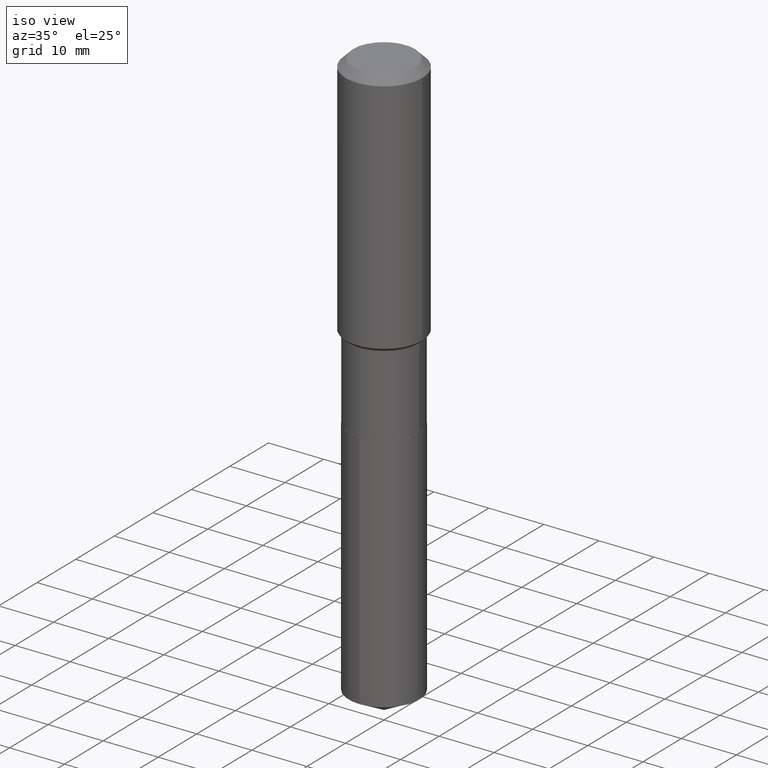
[diagram: clean part render]
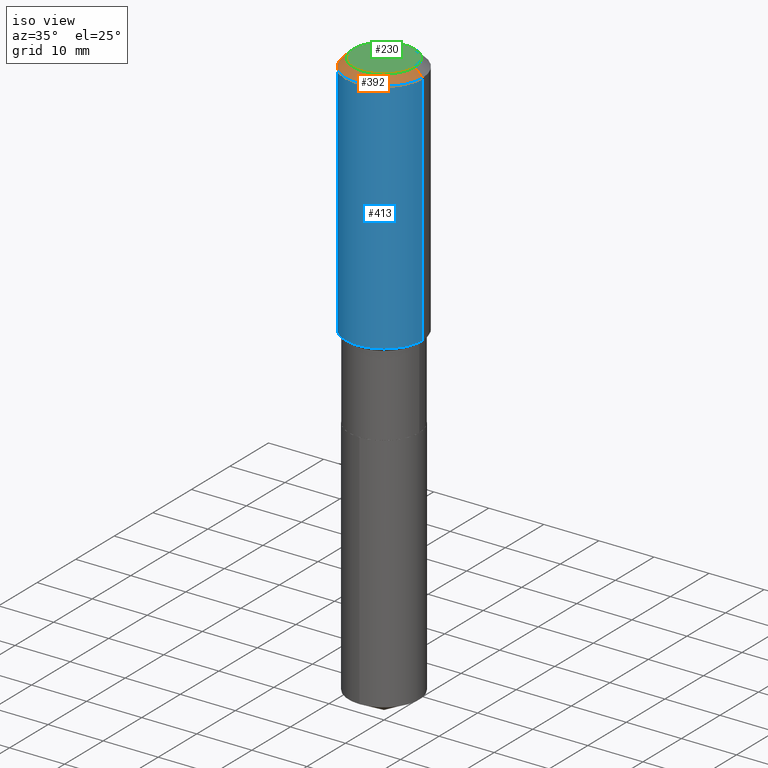
[diagram: same view with three faces highlighted in distinct colors, each labeled with its STEP entity id]
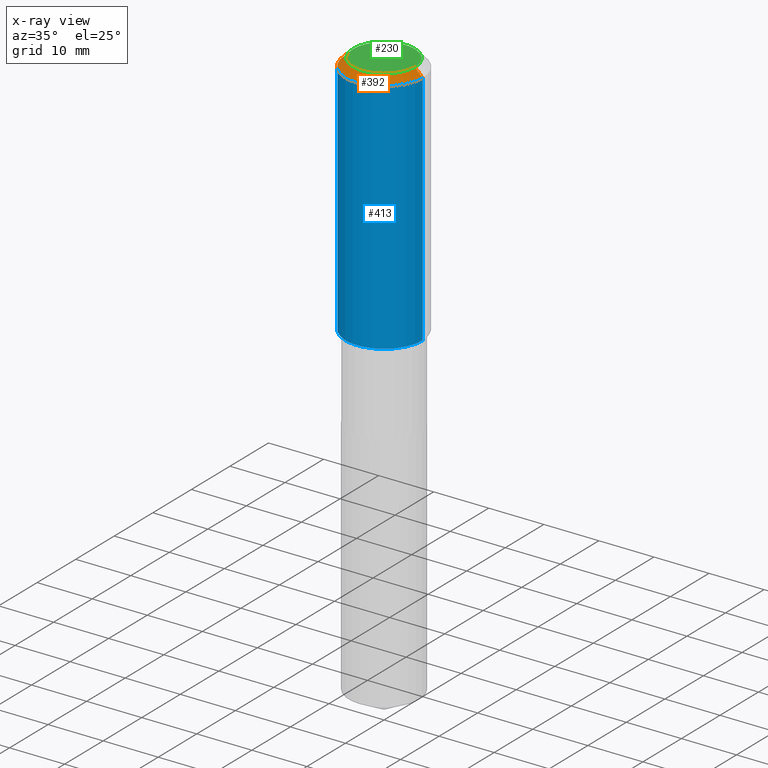
[diagram: x-ray of the same camera — body ghosted, the three highlighted faces saturated]
A machine part, iso view with three faces highlighted in distinct colors.
The next image is the same camera in x-ray (body ghosted, the three faces saturated) — at least one of them is partly hidden behind the body in this view.
Their STEP definitions:

[orange] entity #392 — the highlighted conical surface has half-angle 45 deg.
#8 = DIRECTION ( 'NONE',  ( -2.445468806185136597E-29, 3.491481338843145583E-15, 1.000000000000000000 ) ) ;
#15 = ORIENTED_EDGE ( 'NONE', *, *, #252, .T. ) ;
#32 = AXIS2_PLACEMENT_3D ( 'NONE', #99, #244, #393 ) ;
#42 = DIRECTION ( 'NONE',  ( 1.000000000000000000, -6.982962677686265922E-15, 0.000000000000000000 ) ) ;
#82 = CARTESIAN_POINT ( 'NONE',  ( -0.2204800000000000093, 1.635828836874783961E-15, 3.860086710901350968E-18 ) ) ;
#87 = DIRECTION ( 'NONE',  ( -0.7071067811865453523, 2.468850131082234184E-15, -0.7071067811865496822 ) ) ;
#92 = EDGE_CURVE ( 'NONE', #299, #141, #157, .T. ) ;
#99 = CARTESIAN_POINT ( 'NONE',  ( 1.347942405969256063E-30, -1.924504513970354330E-16, -0.05512000000000035621 ) ) ;
#115 = EDGE_CURVE ( 'NONE', #446, #303, #340, .T. ) ;
#124 = CARTESIAN_POINT ( 'NONE',  ( -9.439721640706190018E-47, 1.347742071746724849E-32, 3.860086710912454339E-18 ) ) ;
#135 = VECTOR ( 'NONE', #333, 39.37007874015748143 ) ;
#137 = ORIENTED_EDGE ( 'NONE', *, *, #115, .F. ) ;
#141 = VERTEX_POINT ( 'NONE', #169 ) ;
#145 = CONICAL_SURFACE ( 'NONE', #32, 0.2756000000000000116, 0.7853981633974452814 ) ;
#149 = AXIS2_PLACEMENT_3D ( 'NONE', #200, #160, #42 ) ;
#157 = LINE ( 'NONE', #487, #247 ) ;
#160 = DIRECTION ( 'NONE',  ( -2.445468806185136597E-29, 3.491481338843145583E-15, 1.000000000000000000 ) ) ;
#161 = EDGE_CURVE ( 'NONE', #299, #446, #292, .T. ) ;
#169 = CARTESIAN_POINT ( 'NONE',  ( -0.2756000000000000116, -1.195023219201267736E-15, -0.05512000000000035621 ) ) ;
#200 = CARTESIAN_POINT ( 'NONE',  ( 1.347942405969256063E-30, -1.924504513970354330E-16, -0.05512000000000035621 ) ) ;
#244 = DIRECTION ( 'NONE',  ( 2.445468806185136597E-29, -3.491481338843145583E-15, -1.000000000000000000 ) ) ;
#246 = ORIENTED_EDGE ( 'NONE', *, *, #92, .T. ) ;
#247 = VECTOR ( 'NONE', #87, 39.37007874015748143 ) ;
#252 = EDGE_CURVE ( 'NONE', #141, #303, #358, .T. ) ;
#264 = CARTESIAN_POINT ( 'NONE',  ( 0.2756000000000000116, -2.083203699582869812E-15, -0.05512000000000035621 ) ) ;
#292 = CIRCLE ( 'NONE', #466, 0.2204800000000000093 ) ;
#299 = VERTEX_POINT ( 'NONE', #82 ) ;
#303 = VERTEX_POINT ( 'NONE', #386 ) ;
#316 = FACE_OUTER_BOUND ( 'NONE', #483, .T. ) ;
#332 = CARTESIAN_POINT ( 'NONE',  ( 0.2204800000000000093, -1.797903149065768707E-15, 3.860086710924123164E-18 ) ) ;
#333 = DIRECTION ( 'NONE',  ( 0.7071067811865453523, -7.319954787623248157E-15, -0.7071067811865496822 ) ) ;
#340 = LINE ( 'NONE', #264, #135 ) ;
#358 = CIRCLE ( 'NONE', #149, 0.2756000000000000116 ) ;
#386 = CARTESIAN_POINT ( 'NONE',  ( 0.2756000000000000116, -2.116954965367370658E-15, -0.05512000000000035621 ) ) ;
#392 = ADVANCED_FACE ( 'NONE', ( #316 ), #145, .T. ) ;
#393 = DIRECTION ( 'NONE',  ( -1.000000000000000000, 6.982962677686269077E-15, 0.000000000000000000 ) ) ;
#422 = DIRECTION ( 'NONE',  ( 1.000000000000000000, -6.982962677686266711E-15, 4.876132675269083677E-29 ) ) ;
#428 = ORIENTED_EDGE ( 'NONE', *, *, #161, .F. ) ;
#446 = VERTEX_POINT ( 'NONE', #332 ) ;
#466 = AXIS2_PLACEMENT_3D ( 'NONE', #124, #8, #422 ) ;
#483 = EDGE_LOOP ( 'NONE', ( #137, #428, #246, #15 ) ) ;
#487 = CARTESIAN_POINT ( 'NONE',  ( -0.2756000000000000116, 1.732054062573300039E-15, -0.05512000000000035621 ) ) ;

[blue] entity #413 — the highlighted cylindrical surface (partial cylindrical patch) has radius 7.0002 mm, axis along (-0, 0, 1).
#20 = FACE_OUTER_BOUND ( 'NONE', #202, .T. ) ;
#42 = DIRECTION ( 'NONE',  ( 1.000000000000000000, -6.982962677686265922E-15, 0.000000000000000000 ) ) ;
#44 = DIRECTION ( 'NONE',  ( -2.445468806185136597E-29, 3.491481338843145583E-15, 1.000000000000000000 ) ) ;
#45 = EDGE_CURVE ( 'NONE', #472, #303, #278, .T. ) ;
#56 = DIRECTION ( 'NONE',  ( -2.445468806185136877E-29, 3.491481338843145188E-15, 1.000000000000000000 ) ) ;
#59 = VERTEX_POINT ( 'NONE', #438 ) ;
#117 = ORIENTED_EDGE ( 'NONE', *, *, #257, .F. ) ;
#118 = CARTESIAN_POINT ( 'NONE',  ( -0.2756000000000001227, 1.958255779754836984E-15, -1.355658510874252567E-29 ) ) ;
#140 = CARTESIAN_POINT ( 'NONE',  ( 0.000000000000000000, 0.000000000000000000, 0.000000000000000000 ) ) ;
#141 = VERTEX_POINT ( 'NONE', #169 ) ;
#149 = AXIS2_PLACEMENT_3D ( 'NONE', #200, #160, #42 ) ;
#160 = DIRECTION ( 'NONE',  ( -2.445468806185136597E-29, 3.491481338843145583E-15, 1.000000000000000000 ) ) ;
#169 = CARTESIAN_POINT ( 'NONE',  ( -0.2756000000000000116, -1.195023219201267736E-15, -0.05512000000000035621 ) ) ;
#171 = VECTOR ( 'NONE', #56, 39.37007874015748143 ) ;
#177 = AXIS2_PLACEMENT_3D ( 'NONE', #379, #44, #239 ) ;
#182 = CARTESIAN_POINT ( 'NONE',  ( 0.2756000000000002337, -8.038612060485511055E-15, -1.751149999999999984 ) ) ;
#189 = DIRECTION ( 'NONE',  ( -2.445468806185136877E-29, 3.491481338843145188E-15, 1.000000000000000000 ) ) ;
#200 = CARTESIAN_POINT ( 'NONE',  ( 1.347942405969256063E-30, -1.924504513970354330E-16, -0.05512000000000035621 ) ) ;
#202 = EDGE_LOOP ( 'NONE', ( #117, #427, #327, #242 ) ) ;
#224 = EDGE_CURVE ( 'NONE', #59, #472, #388, .T. ) ;
#239 = DIRECTION ( 'NONE',  ( 1.000000000000000000, -6.982962677686267499E-15, 0.000000000000000000 ) ) ;
#242 = ORIENTED_EDGE ( 'NONE', *, *, #252, .F. ) ;
#252 = EDGE_CURVE ( 'NONE', #141, #303, #358, .T. ) ;
#256 = DIRECTION ( 'NONE',  ( 1.000000000000000000, -6.982962677686267499E-15, 4.876176775795935793E-29 ) ) ;
#257 = EDGE_CURVE ( 'NONE', #59, #141, #331, .T. ) ;
#278 = LINE ( 'NONE', #425, #171 ) ;
#287 = DIRECTION ( 'NONE',  ( -2.445468806185136597E-29, 3.491481338843145583E-15, 1.000000000000000000 ) ) ;
#303 = VERTEX_POINT ( 'NONE', #386 ) ;
#327 = ORIENTED_EDGE ( 'NONE', *, *, #45, .T. ) ;
#329 = AXIS2_PLACEMENT_3D ( 'NONE', #140, #287, #256 ) ;
#331 = LINE ( 'NONE', #118, #418 ) ;
#358 = CIRCLE ( 'NONE', #149, 0.2756000000000000116 ) ;
#379 = CARTESIAN_POINT ( 'NONE',  ( 4.282382699951101703E-29, -6.114107546515174524E-15, -1.751149999999999984 ) ) ;
#386 = CARTESIAN_POINT ( 'NONE',  ( 0.2756000000000000116, -2.116954965367370658E-15, -0.05512000000000035621 ) ) ;
#388 = CIRCLE ( 'NONE', #177, 0.2756000000000002337 ) ;
#413 = ADVANCED_FACE ( 'NONE', ( #20 ), #468, .T. ) ;
#418 = VECTOR ( 'NONE', #189, 39.37007874015748143 ) ;
#425 = CARTESIAN_POINT ( 'NONE',  ( 0.2756000000000001227, -1.924504513970336137E-15, 1.343874319409360548E-29 ) ) ;
#427 = ORIENTED_EDGE ( 'NONE', *, *, #224, .T. ) ;
#438 = CARTESIAN_POINT ( 'NONE',  ( -0.2756000000000002337, -4.155851766760337145E-15, -1.751149999999999984 ) ) ;
#468 = CYLINDRICAL_SURFACE ( 'NONE', #329, 0.2756000000000001227 ) ;
#472 = VERTEX_POINT ( 'NONE', #182 ) ;

[green] entity #230 — the highlighted planar face has unit normal (0, -0, -1).
#7 = DIRECTION ( 'NONE',  ( 1.000000000000000000, -6.982962677686266711E-15, 4.876132675269083677E-29 ) ) ;
#8 = DIRECTION ( 'NONE',  ( -2.445468806185136597E-29, 3.491481338843145583E-15, 1.000000000000000000 ) ) ;
#82 = CARTESIAN_POINT ( 'NONE',  ( -0.2204800000000000093, 1.635828836874783961E-15, 3.860086710901350968E-18 ) ) ;
#95 = CIRCLE ( 'NONE', #297, 0.2204800000000000093 ) ;
#124 = CARTESIAN_POINT ( 'NONE',  ( -9.439721640706190018E-47, 1.347742071746724849E-32, 3.860086710912454339E-18 ) ) ;
#146 = EDGE_CURVE ( 'NONE', #446, #299, #95, .T. ) ;
#161 = EDGE_CURVE ( 'NONE', #299, #446, #292, .T. ) ;
#193 = DIRECTION ( 'NONE',  ( 2.438088387897960049E-29, -3.491481338843145188E-15, -1.000000000000000000 ) ) ;
#206 = EDGE_LOOP ( 'NONE', ( #343, #225 ) ) ;
#225 = ORIENTED_EDGE ( 'NONE', *, *, #146, .T. ) ;
#229 = CARTESIAN_POINT ( 'NONE',  ( -4.719860820353095009E-47, 6.738710358733624243E-33, 1.930043355456227170E-18 ) ) ;
#230 = ADVANCED_FACE ( 'NONE', ( #449 ), #305, .F. ) ;
#276 = AXIS2_PLACEMENT_3D ( 'NONE', #229, #193, #383 ) ;
#292 = CIRCLE ( 'NONE', #466, 0.2204800000000000093 ) ;
#297 = AXIS2_PLACEMENT_3D ( 'NONE', #318, #469, #7 ) ;
#299 = VERTEX_POINT ( 'NONE', #82 ) ;
#305 = PLANE ( 'NONE',  #276 ) ;
#318 = CARTESIAN_POINT ( 'NONE',  ( -9.439721640706190018E-47, 1.347742071746724849E-32, 3.860086710912454339E-18 ) ) ;
#332 = CARTESIAN_POINT ( 'NONE',  ( 0.2204800000000000093, -1.797903149065768707E-15, 3.860086710924123164E-18 ) ) ;
#343 = ORIENTED_EDGE ( 'NONE', *, *, #161, .T. ) ;
#383 = DIRECTION ( 'NONE',  ( -1.000000000000000000, 6.982962677686265922E-15, -4.876176775795935793E-29 ) ) ;
#422 = DIRECTION ( 'NONE',  ( 1.000000000000000000, -6.982962677686266711E-15, 4.876132675269083677E-29 ) ) ;
#446 = VERTEX_POINT ( 'NONE', #332 ) ;
#449 = FACE_OUTER_BOUND ( 'NONE', #206, .T. ) ;
#466 = AXIS2_PLACEMENT_3D ( 'NONE', #124, #8, #422 ) ;
#469 = DIRECTION ( 'NONE',  ( -2.445468806185136597E-29, 3.491481338843145583E-15, 1.000000000000000000 ) ) ;